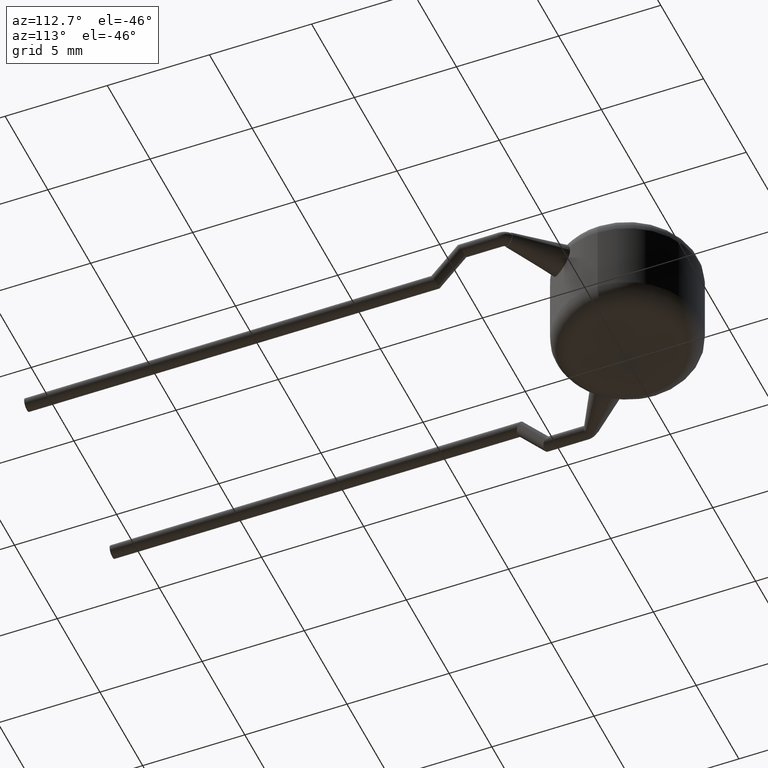
[diagram: clean part render]
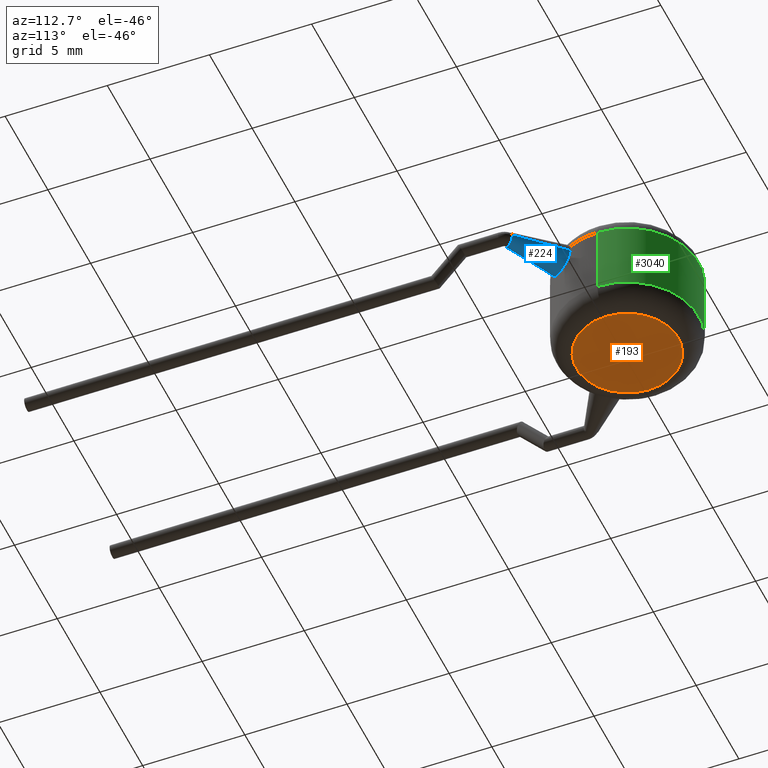
[diagram: same view with three faces highlighted in distinct colors, each labeled with its STEP entity id]
A machine part, auxiliary view with three faces highlighted in distinct colors.
Their STEP definitions:

[orange] entity #193 — the highlighted planar face has unit normal (0, 0, 1).
#36 = CARTESIAN_POINT ( 'NONE',  ( 0.0000000000000000000, 0.0000000000000000000, 0.0000000000000000000 ) ) ;
#131 = ORIENTED_EDGE ( 'NONE', *, *, #4010, .T. ) ;
#193 = ADVANCED_FACE ( 'NONE', ( #4028 ), #240, .F. ) ;
#240 = PLANE ( 'NONE',  #3227 ) ;
#800 = CIRCLE ( 'NONE', #1379, 2.499999999999999600 ) ;
#843 = DIRECTION ( 'NONE',  ( 1.000000000000000000, 0.0000000000000000000, -0.0000000000000000000 ) ) ;
#1158 = EDGE_CURVE ( 'NONE', #1702, #1400, #3345, .T. ) ;
#1173 = DIRECTION ( 'NONE',  ( 0.0000000000000000000, 0.0000000000000000000, 1.000000000000000000 ) ) ;
#1379 = AXIS2_PLACEMENT_3D ( 'NONE', #2373, #1706, #2341 ) ;
#1400 = VERTEX_POINT ( 'NONE', #3944 ) ;
#1644 = DIRECTION ( 'NONE',  ( -0.0000000000000000000, -0.0000000000000000000, -1.000000000000000000 ) ) ;
#1702 = VERTEX_POINT ( 'NONE', #3792 ) ;
#1706 = DIRECTION ( 'NONE',  ( -0.0000000000000000000, -0.0000000000000000000, -1.000000000000000000 ) ) ;
#1719 = ORIENTED_EDGE ( 'NONE', *, *, #1158, .T. ) ;
#1755 = EDGE_LOOP ( 'NONE', ( #131, #1719 ) ) ;
#1969 = DIRECTION ( 'NONE',  ( 1.000000000000000000, 0.0000000000000000000, 0.0000000000000000000 ) ) ;
#2341 = DIRECTION ( 'NONE',  ( 1.000000000000000000, 0.0000000000000000000, 0.0000000000000000000 ) ) ;
#2373 = CARTESIAN_POINT ( 'NONE',  ( 0.0000000000000000000, 0.0000000000000000000, 0.0000000000000000000 ) ) ;
#3201 = CARTESIAN_POINT ( 'NONE',  ( 0.0000000000000000000, 0.0000000000000000000, 0.0000000000000000000 ) ) ;
#3227 = AXIS2_PLACEMENT_3D ( 'NONE', #3201, #1173, #843 ) ;
#3345 = CIRCLE ( 'NONE', #3774, 2.499999999999999600 ) ;
#3774 = AXIS2_PLACEMENT_3D ( 'NONE', #36, #1644, #1969 ) ;
#3792 = CARTESIAN_POINT ( 'NONE',  ( -2.499999999999999600, 3.673940397442059400E-016, 0.0000000000000000000 ) ) ;
#3944 = CARTESIAN_POINT ( 'NONE',  ( 2.499999999999999600, 0.0000000000000000000, 0.0000000000000000000 ) ) ;
#4010 = EDGE_CURVE ( 'NONE', #1400, #1702, #800, .T. ) ;
#4028 = FACE_OUTER_BOUND ( 'NONE', #1755, .T. ) ;

[blue] entity #224 — the highlighted conical surface has half-angle 9 deg.
#47 = CARTESIAN_POINT ( 'NONE',  ( 2.331018293051292400, -2.611842363679401500, 3.773633129375697500 ) ) ;
#146 = LINE ( 'NONE', #487, #890 ) ;
#224 = ADVANCED_FACE ( 'NONE', ( #2522 ), #946, .T. ) ;
#439 = EDGE_LOOP ( 'NONE', ( #1133, #4252, #1244, #587 ) ) ;
#470 = LINE ( 'NONE', #1627, #1593 ) ;
#475 = EDGE_CURVE ( 'NONE', #1042, #3156, #146, .T. ) ;
#487 = CARTESIAN_POINT ( 'NONE',  ( 5.061630886008984500, -3.508901932770405200, 4.250000000000000000 ) ) ;
#587 = ORIENTED_EDGE ( 'NONE', *, *, #475, .F. ) ;
#733 = CIRCLE ( 'NONE', #2317, 0.3499999999999993100 ) ;
#890 = VECTOR ( 'NONE', #1833, 1000.000000000000100 ) ;
#946 = CONICAL_SURFACE ( 'NONE', #3575, 0.3499999999999993100, 0.1570796326794901000 ) ;
#959 = CARTESIAN_POINT ( 'NONE',  ( 2.223036915557440100, -2.703658857319194200, 4.045832854856711500 ) ) ;
#1013 = CARTESIAN_POINT ( 'NONE',  ( 3.161774336799698700, -1.501611596569366400, 4.046227729695535100 ) ) ;
#1042 = VERTEX_POINT ( 'NONE', #2737 ) ;
#1133 = ORIENTED_EDGE ( 'NONE', *, *, #1551, .F. ) ;
#1155 = EDGE_CURVE ( 'NONE', #3391, #3156, #2379, .T. ) ;
#1170 = CARTESIAN_POINT ( 'NONE',  ( 2.206098872104708800, -2.717191153838523800, 4.250000000000000000 ) ) ;
#1206 = DIRECTION ( 'NONE',  ( 0.6155078480119785500, 0.7881307563061240600, 0.0000000000000000000 ) ) ;
#1228 = CARTESIAN_POINT ( 'NONE',  ( 4.846203139204791700, -3.784747697477548000, 4.250000000000000000 ) ) ;
#1244 = ORIENTED_EDGE ( 'NONE', *, *, #1155, .T. ) ;
#1362 = CARTESIAN_POINT ( 'NONE',  ( 2.992218036810693900, -1.821652905965433800, 3.561699991013261600 ) ) ;
#1551 = EDGE_CURVE ( 'NONE', #2331, #1042, #733, .T. ) ;
#1593 = VECTOR ( 'NONE', #3937, 1000.000000000000000 ) ;
#1608 = CARTESIAN_POINT ( 'NONE',  ( 3.170760625035220500, -1.481984162778488000, 4.250000000000000000 ) ) ;
#1627 = CARTESIAN_POINT ( 'NONE',  ( 4.630775392400599900, -4.060593462184691300, 4.250000000000000000 ) ) ;
#1833 = DIRECTION ( 'NONE',  ( -0.6821409179361681600, 0.7312207382707371900, 0.0000000000000000000 ) ) ;
#2317 = AXIS2_PLACEMENT_3D ( 'NONE', #1228, #3579, #1206 ) ;
#2328 = EDGE_CURVE ( 'NONE', #2331, #3391, #470, .T. ) ;
#2331 = VERTEX_POINT ( 'NONE', #2646 ) ;
#2345 = CARTESIAN_POINT ( 'NONE',  ( 2.883866474476177300, -1.993704242200748500, 3.480422569855393900 ) ) ;
#2362 = CARTESIAN_POINT ( 'NONE',  ( 3.126024614890291300, -1.574682333328466100, 3.859577242883690300 ) ) ;
#2379 = B_SPLINE_CURVE_WITH_KNOTS ( 'NONE', 3,
 ( #1170, #2867, #959, #3273, #47, #3659, #3009, #2345, #1362, #3026, #2362, #1013, #4014, #3636 ),
 .UNSPECIFIED., .F., .F.,
 ( 4, 2, 2, 2, 2, 2, 4 ),
 ( 0.0002539847493750921600, 0.0005586012227294383400, 0.0008632176960837846900, 0.001472450642792475400, 0.002081683589501166200, 0.002386300062855511200, 0.002690916536209855800 ),
 .UNSPECIFIED. ) ;
#2396 = CARTESIAN_POINT ( 'NONE',  ( 2.206098872104708800, -2.717191153838523800, 4.250000000000000000 ) ) ;
#2522 = FACE_OUTER_BOUND ( 'NONE', #439, .T. ) ;
#2523 = CARTESIAN_POINT ( 'NONE',  ( 4.846203139204791700, -3.784747697477548000, 4.250000000000000000 ) ) ;
#2646 = CARTESIAN_POINT ( 'NONE',  ( 4.630775392400599900, -4.060593462184691300, 4.250000000000000000 ) ) ;
#2737 = CARTESIAN_POINT ( 'NONE',  ( 5.061630886008984500, -3.508901932770405200, 4.250000000000000000 ) ) ;
#2819 = DIRECTION ( 'NONE',  ( 0.6155078480119785500, 0.7881307563061240600, 0.0000000000000000000 ) ) ;
#2867 = CARTESIAN_POINT ( 'NONE',  ( 2.206098872104708300, -2.717191153838524700, 4.147122495276543800 ) ) ;
#3009 = CARTESIAN_POINT ( 'NONE',  ( 2.632954239084559900, -2.314971797422932500, 3.480461850024378500 ) ) ;
#3026 = CARTESIAN_POINT ( 'NONE',  ( 3.099283301192927700, -1.627848285729837800, 3.774678115848526500 ) ) ;
#3156 = VERTEX_POINT ( 'NONE', #1608 ) ;
#3273 = CARTESIAN_POINT ( 'NONE',  ( 2.285452653893778900, -2.651107412290484500, 3.858982391964464100 ) ) ;
#3391 = VERTEX_POINT ( 'NONE', #2396 ) ;
#3575 = AXIS2_PLACEMENT_3D ( 'NONE', #2523, #3837, #2819 ) ;
#3579 = DIRECTION ( 'NONE',  ( 0.7881307563061235000, -0.6155078480119791100, 0.0000000000000000000 ) ) ;
#3636 = CARTESIAN_POINT ( 'NONE',  ( 3.170760625035220500, -1.481984162778488000, 4.250000000000000000 ) ) ;
#3659 = CARTESIAN_POINT ( 'NONE',  ( 2.491889636305743200, -2.462103430295461000, 3.562547494246285600 ) ) ;
#3837 = DIRECTION ( 'NONE',  ( -0.7881307563061235000, 0.6155078480119791100, -0.0000000000000000000 ) ) ;
#3937 = DIRECTION ( 'NONE',  ( -0.8747141997998039200, 0.4846391117817345800, -1.915769668878477800E-017 ) ) ;
#4014 = CARTESIAN_POINT ( 'NONE',  ( 3.170760625035220000, -1.481984162778488000, 4.148479464980650500 ) ) ;
#4252 = ORIENTED_EDGE ( 'NONE', *, *, #2328, .T. ) ;

[green] entity #3040 — the highlighted cylindrical surface (partial cylindrical patch) has radius 3.5 mm, axis along (-0, -0, -1).
#10 = CIRCLE ( 'NONE', #1638, 3.499999999999999600 ) ;
#27 = DIRECTION ( 'NONE',  ( -1.000000000000000000, 0.0000000000000000000, 0.0000000000000000000 ) ) ;
#234 = DIRECTION ( 'NONE',  ( -0.0000000000000000000, -0.0000000000000000000, -1.000000000000000000 ) ) ;
#261 = LINE ( 'NONE', #2076, #1294 ) ;
#322 = CARTESIAN_POINT ( 'NONE',  ( -3.499999999999999600, 0.0000000000000000000, 1.000000000000000000 ) ) ;
#331 = VERTEX_POINT ( 'NONE', #1072 ) ;
#360 = DIRECTION ( 'NONE',  ( -0.0000000000000000000, -0.0000000000000000000, -1.000000000000000000 ) ) ;
#498 = EDGE_CURVE ( 'NONE', #858, #606, #1807, .T. ) ;
#606 = VERTEX_POINT ( 'NONE', #322 ) ;
#611 = ORIENTED_EDGE ( 'NONE', *, *, #3689, .T. ) ;
#858 = VERTEX_POINT ( 'NONE', #1653 ) ;
#906 = ORIENTED_EDGE ( 'NONE', *, *, #3901, .F. ) ;
#1072 = CARTESIAN_POINT ( 'NONE',  ( -3.499999999999999600, 0.0000000000000000000, 4.500000000000000000 ) ) ;
#1113 = CARTESIAN_POINT ( 'NONE',  ( 3.499999999999999600, 4.286263797015736100E-016, 4.500000000000000000 ) ) ;
#1163 = DIRECTION ( 'NONE',  ( 1.000000000000000000, 0.0000000000000000000, 0.0000000000000000000 ) ) ;
#1178 = CARTESIAN_POINT ( 'NONE',  ( 0.0000000000000000000, 0.0000000000000000000, 4.500000000000000000 ) ) ;
#1240 = CARTESIAN_POINT ( 'NONE',  ( 3.499999999999999600, 4.286263797015736100E-016, 5.500000000000000000 ) ) ;
#1294 = VECTOR ( 'NONE', #1756, 1000.000000000000000 ) ;
#1436 = CARTESIAN_POINT ( 'NONE',  ( 0.0000000000000000000, 0.0000000000000000000, 5.500000000000000000 ) ) ;
#1475 = DIRECTION ( 'NONE',  ( 1.000000000000000000, 0.0000000000000000000, 0.0000000000000000000 ) ) ;
#1549 = ORIENTED_EDGE ( 'NONE', *, *, #498, .T. ) ;
#1638 = AXIS2_PLACEMENT_3D ( 'NONE', #1178, #234, #1163 ) ;
#1653 = CARTESIAN_POINT ( 'NONE',  ( 3.499999999999999600, 4.286263797015736100E-016, 1.000000000000000000 ) ) ;
#1756 = DIRECTION ( 'NONE',  ( -0.0000000000000000000, -0.0000000000000000000, -1.000000000000000000 ) ) ;
#1807 = CIRCLE ( 'NONE', #3100, 3.499999999999999600 ) ;
#1860 = CYLINDRICAL_SURFACE ( 'NONE', #2979, 3.499999999999999600 ) ;
#2076 = CARTESIAN_POINT ( 'NONE',  ( -3.499999999999999600, 0.0000000000000000000, 5.500000000000000000 ) ) ;
#2097 = DIRECTION ( 'NONE',  ( 0.0000000000000000000, 0.0000000000000000000, 1.000000000000000000 ) ) ;
#2284 = EDGE_CURVE ( 'NONE', #3618, #858, #4240, .T. ) ;
#2583 = VECTOR ( 'NONE', #360, 1000.000000000000000 ) ;
#2668 = FACE_OUTER_BOUND ( 'NONE', #3779, .T. ) ;
#2979 = AXIS2_PLACEMENT_3D ( 'NONE', #1436, #3083, #27 ) ;
#3040 = ADVANCED_FACE ( 'NONE', ( #2668 ), #1860, .T. ) ;
#3083 = DIRECTION ( 'NONE',  ( -0.0000000000000000000, -0.0000000000000000000, -1.000000000000000000 ) ) ;
#3100 = AXIS2_PLACEMENT_3D ( 'NONE', #3477, #2097, #1475 ) ;
#3477 = CARTESIAN_POINT ( 'NONE',  ( 0.0000000000000000000, 0.0000000000000000000, 1.000000000000000000 ) ) ;
#3614 = ORIENTED_EDGE ( 'NONE', *, *, #2284, .T. ) ;
#3618 = VERTEX_POINT ( 'NONE', #1113 ) ;
#3689 = EDGE_CURVE ( 'NONE', #331, #3618, #10, .T. ) ;
#3779 = EDGE_LOOP ( 'NONE', ( #611, #3614, #1549, #906 ) ) ;
#3901 = EDGE_CURVE ( 'NONE', #331, #606, #261, .T. ) ;
#4240 = LINE ( 'NONE', #1240, #2583 ) ;